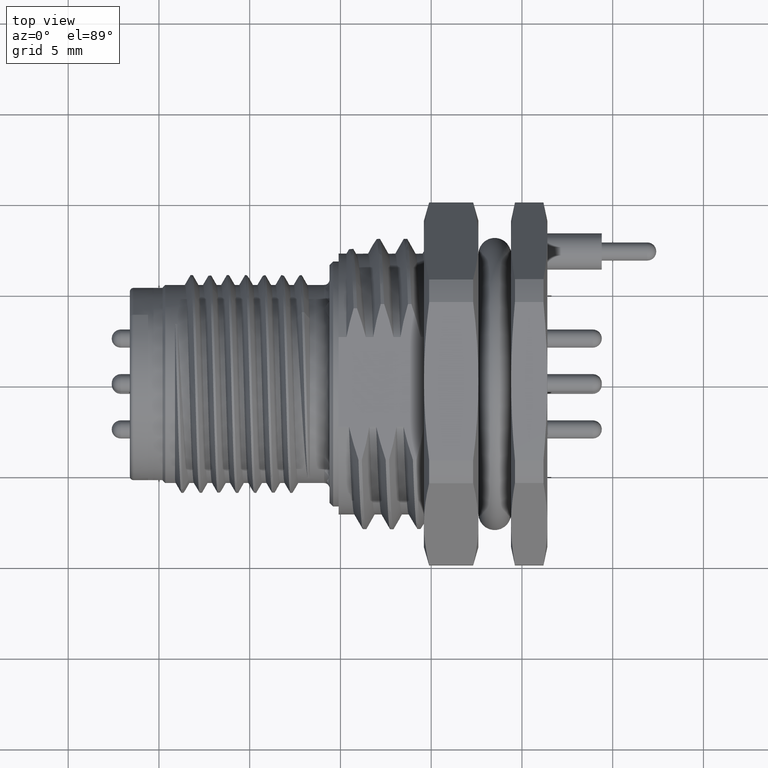
[diagram: clean part render]
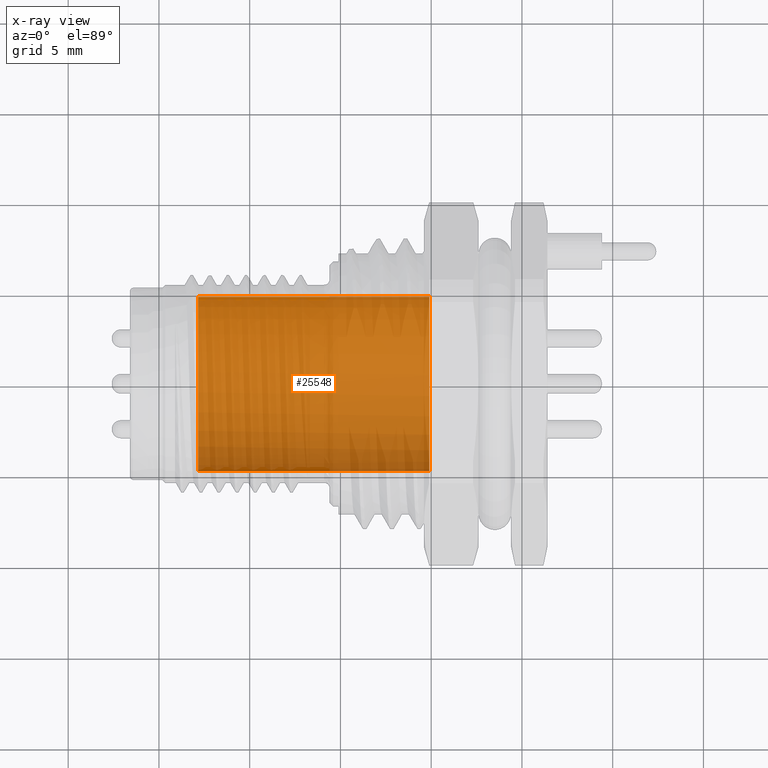
[diagram: x-ray — body ghosted, one internal face saturated and labeled with its STEP entity id]
A machine part, top view, then the same camera in x-ray: the body is ghosted and one INTERNAL B-rep face — a face not visible from any outside direction — is saturated and labeled: STEP entity #25548.
In plain terms, the highlighted cylindrical surface (partial cylindrical patch) has radius 4.8 mm, axis along (1, 0, 0).
Its self-contained STEP definition (entity closure, byte-faithful):
#25433=CARTESIAN_POINT('',(1.49E1,0.E0,0.E0));
#25434=DIRECTION('',(1.E0,0.E0,0.E0));
#25435=DIRECTION('',(0.E0,-1.E0,0.E0));
#25436=AXIS2_PLACEMENT_3D('',#25433,#25434,#25435);
#25438=CARTESIAN_POINT('',(2.157071421427E0,0.E0,0.E0));
#25439=DIRECTION('',(1.E0,0.E0,0.E0));
#25440=DIRECTION('',(0.E0,-7.071067811865E-1,-7.071067811865E-1));
#25441=AXIS2_PLACEMENT_3D('',#25438,#25439,#25440);
#25443=CARTESIAN_POINT('',(2.157071421427E0,0.E0,0.E0));
#25444=DIRECTION('',(1.E0,0.E0,0.E0));
#25445=DIRECTION('',(0.E0,-1.E0,0.E0));
#25446=AXIS2_PLACEMENT_3D('',#25443,#25444,#25445);
#25448=DIRECTION('',(-1.E0,0.E0,1.677696142623E-13));
#25449=VECTOR('',#25448,1.274292857857E1);
#25450=CARTESIAN_POINT('',(1.49E1,4.8E0,-2.518082797387E-12));
#25451=LINE('',#25450,#25449);
#25457=DIRECTION('',(1.E0,0.E0,0.E0));
#25458=VECTOR('',#25457,1.274292857857E1);
#25459=CARTESIAN_POINT('',(2.157071421427E0,-4.8E0,0.E0));
#25460=LINE('',#25459,#25458);
#25498=CARTESIAN_POINT('',(2.157071421427E0,-4.8E0,0.E0));
#25499=CARTESIAN_POINT('',(2.157071421427E0,-3.394112549695E0,
-3.394112549695E0));
#25500=VERTEX_POINT('',#25498);
#25501=VERTEX_POINT('',#25499);
#25502=CARTESIAN_POINT('',(2.157071421427E0,4.8E0,-3.801403636317E-13));
#25503=VERTEX_POINT('',#25502);
#25506=CARTESIAN_POINT('',(1.49E1,-4.8E0,0.E0));
#25507=CARTESIAN_POINT('',(1.49E1,4.8E0,-2.518922488957E-12));
#25508=VERTEX_POINT('',#25506);
#25509=VERTEX_POINT('',#25507);
#25532=CARTESIAN_POINT('',(-4.E-1,0.E0,0.E0));
#25533=DIRECTION('',(1.E0,0.E0,0.E0));
#25534=DIRECTION('',(0.E0,-1.E0,0.E0));
#25535=AXIS2_PLACEMENT_3D('',#25532,#25533,#25534);
#25536=CYLINDRICAL_SURFACE('',#25535,4.8E0);
#25538=ORIENTED_EDGE('',*,*,#25537,.T.);
#25540=ORIENTED_EDGE('',*,*,#25539,.T.);
#25542=ORIENTED_EDGE('',*,*,#25541,.T.);
#25543=ORIENTED_EDGE('',*,*,#25519,.F.);
#25545=ORIENTED_EDGE('',*,*,#25544,.F.);
#25546=EDGE_LOOP('',(#25538,#25540,#25542,#25543,#25545));
#25547=FACE_OUTER_BOUND('',#25546,.F.);
#25548=ADVANCED_FACE('',(#25547),#25536,.T.);
#25437=CIRCLE('',#25436,4.8E0);
#25442=CIRCLE('',#25441,4.8E0);
#25447=CIRCLE('',#25446,4.8E0);
#25519=EDGE_CURVE('',#25501,#25503,#25442,.T.);
#25537=EDGE_CURVE('',#25500,#25508,#25460,.T.);
#25539=EDGE_CURVE('',#25508,#25509,#25437,.T.);
#25541=EDGE_CURVE('',#25509,#25503,#25451,.T.);
#25544=EDGE_CURVE('',#25500,#25501,#25447,.T.);